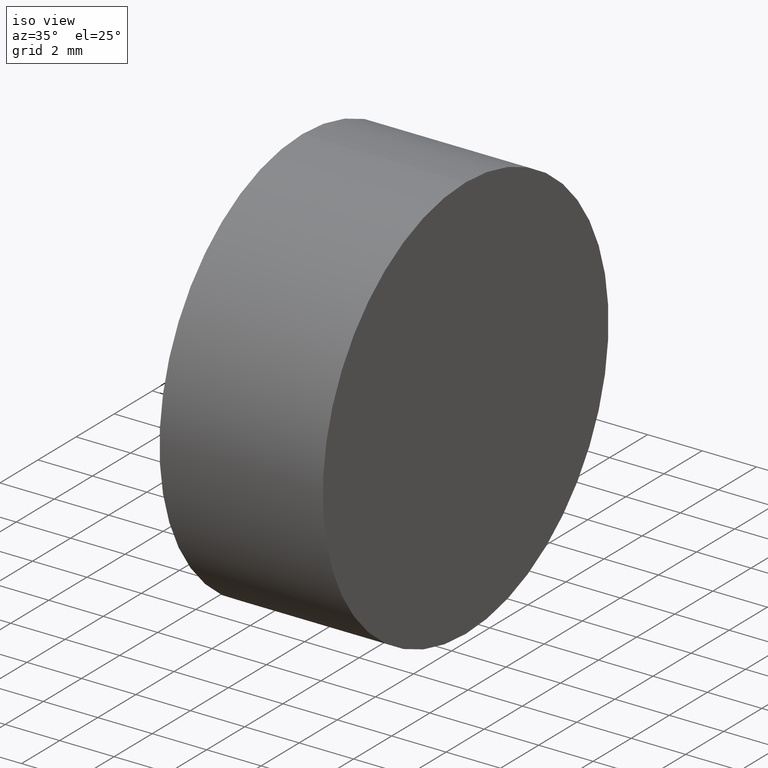
[diagram: clean part render]
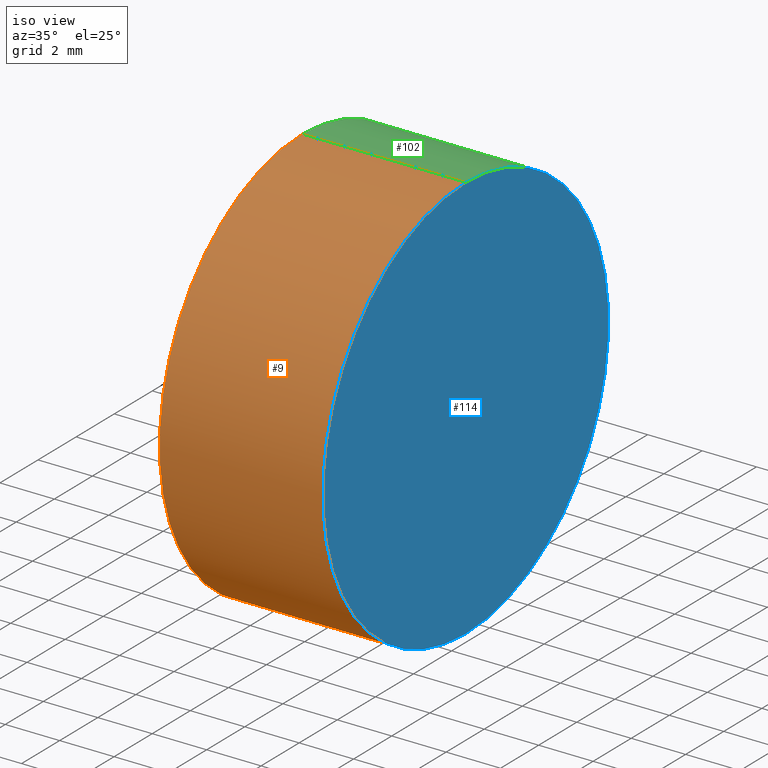
[diagram: same view with three faces highlighted in distinct colors, each labeled with its STEP entity id]
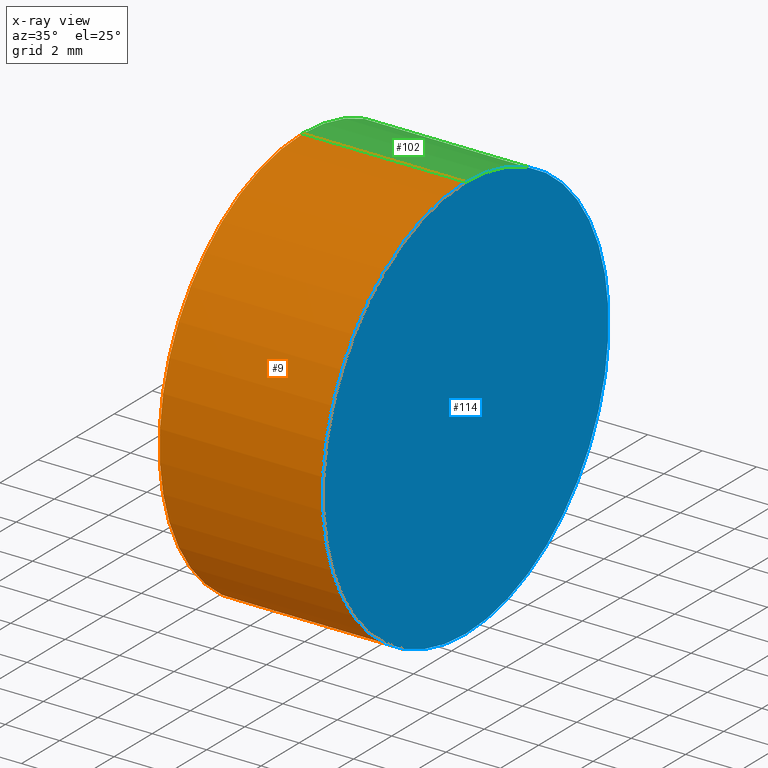
[diagram: x-ray of the same camera — body ghosted, the three highlighted faces saturated]
A machine part, iso view with three faces highlighted in distinct colors.
The next image is the same camera in x-ray (body ghosted, the three faces saturated) — at least one of them is partly hidden behind the body in this view.
Their STEP definitions:

[orange] entity #9 — the highlighted cylindrical surface (partial cylindrical patch) has radius 7.5 mm, axis along (-1, -0, -0).
#1 = AXIS2_PLACEMENT_3D ( 'NONE', #71, #85, #140 ) ;
#4 = EDGE_CURVE ( 'NONE', #12, #138, #10, .T. ) ;
#8 = ORIENTED_EDGE ( 'NONE', *, *, #123, .T. ) ;
#9 = ADVANCED_FACE ( 'NONE', ( #64 ), #42, .T. ) ;
#10 = LINE ( 'NONE', #111, #103 ) ;
#11 = VERTEX_POINT ( 'NONE', #110 ) ;
#12 = VERTEX_POINT ( 'NONE', #99 ) ;
#13 = AXIS2_PLACEMENT_3D ( 'NONE', #91, #41, #51 ) ;
#36 = CARTESIAN_POINT ( 'NONE',  ( 127.0004009963080200, 38.64658967450770900, 7.500000000000000000 ) ) ;
#41 = DIRECTION ( 'NONE',  ( -1.000000000000000000, -0.0000000000000000000, -0.0000000000000000000 ) ) ;
#42 = CYLINDRICAL_SURFACE ( 'NONE', #83, 7.500000000000000000 ) ;
#46 = ORIENTED_EDGE ( 'NONE', *, *, #4, .F. ) ;
#51 = DIRECTION ( 'NONE',  ( 0.0000000000000000000, 0.0000000000000000000, 1.000000000000000000 ) ) ;
#52 = ORIENTED_EDGE ( 'NONE', *, *, #118, .T. ) ;
#59 = DIRECTION ( 'NONE',  ( 0.0000000000000000000, 0.0000000000000000000, 1.000000000000000000 ) ) ;
#61 = EDGE_LOOP ( 'NONE', ( #46, #8, #52, #132 ) ) ;
#62 = EDGE_CURVE ( 'NONE', #138, #11, #131, .T. ) ;
#64 = FACE_OUTER_BOUND ( 'NONE', #61, .T. ) ;
#66 = CARTESIAN_POINT ( 'NONE',  ( 136.0639985298940900, 38.64658967450770900, 7.500000000000000000 ) ) ;
#71 = CARTESIAN_POINT ( 'NONE',  ( 136.0639985298940900, 38.64658967450770900, 0.0000000000000000000 ) ) ;
#72 = VECTOR ( 'NONE', #127, 1000.000000000000000 ) ;
#83 = AXIS2_PLACEMENT_3D ( 'NONE', #129, #121, #59 ) ;
#85 = DIRECTION ( 'NONE',  ( -1.000000000000000000, -0.0000000000000000000, -0.0000000000000000000 ) ) ;
#88 = CIRCLE ( 'NONE', #1, 7.500000000000000000 ) ;
#91 = CARTESIAN_POINT ( 'NONE',  ( 130.0639985298940900, 38.64658967450770900, 0.0000000000000000000 ) ) ;
#95 = CARTESIAN_POINT ( 'NONE',  ( 130.0639985298940900, 38.64658967450770900, -7.500000000000000000 ) ) ;
#98 = DIRECTION ( 'NONE',  ( -1.000000000000000000, -0.0000000000000000000, -0.0000000000000000000 ) ) ;
#99 = CARTESIAN_POINT ( 'NONE',  ( 136.0639985298940900, 38.64658967450770900, -7.500000000000000000 ) ) ;
#103 = VECTOR ( 'NONE', #98, 1000.000000000000000 ) ;
#110 = CARTESIAN_POINT ( 'NONE',  ( 130.0639985298940900, 38.64658967450770900, 7.500000000000000000 ) ) ;
#111 = CARTESIAN_POINT ( 'NONE',  ( 127.0004009963080200, 38.64658967450770900, -7.500000000000000000 ) ) ;
#112 = VERTEX_POINT ( 'NONE', #66 ) ;
#118 = EDGE_CURVE ( 'NONE', #112, #11, #135, .T. ) ;
#121 = DIRECTION ( 'NONE',  ( -1.000000000000000000, -0.0000000000000000000, -0.0000000000000000000 ) ) ;
#123 = EDGE_CURVE ( 'NONE', #12, #112, #88, .T. ) ;
#127 = DIRECTION ( 'NONE',  ( -1.000000000000000000, -0.0000000000000000000, -0.0000000000000000000 ) ) ;
#129 = CARTESIAN_POINT ( 'NONE',  ( 127.0004009963080200, 38.64658967450770900, 0.0000000000000000000 ) ) ;
#131 = CIRCLE ( 'NONE', #13, 7.500000000000000000 ) ;
#132 = ORIENTED_EDGE ( 'NONE', *, *, #62, .F. ) ;
#135 = LINE ( 'NONE', #36, #72 ) ;
#138 = VERTEX_POINT ( 'NONE', #95 ) ;
#140 = DIRECTION ( 'NONE',  ( 0.0000000000000000000, 0.0000000000000000000, 1.000000000000000000 ) ) ;

[blue] entity #114 — the highlighted planar face has unit normal (-1, 0, -0).
#1 = AXIS2_PLACEMENT_3D ( 'NONE', #71, #85, #140 ) ;
#12 = VERTEX_POINT ( 'NONE', #99 ) ;
#19 = EDGE_CURVE ( 'NONE', #112, #12, #101, .T. ) ;
#24 = EDGE_LOOP ( 'NONE', ( #70, #38 ) ) ;
#33 = CARTESIAN_POINT ( 'NONE',  ( 136.0639985298940900, 38.64658967450770900, 0.0000000000000000000 ) ) ;
#38 = ORIENTED_EDGE ( 'NONE', *, *, #123, .F. ) ;
#40 = CARTESIAN_POINT ( 'NONE',  ( 136.0639985298940900, 38.64658967450770900, 0.0000000000000000000 ) ) ;
#55 = PLANE ( 'NONE',  #84 ) ;
#66 = CARTESIAN_POINT ( 'NONE',  ( 136.0639985298940900, 38.64658967450770900, 7.500000000000000000 ) ) ;
#70 = ORIENTED_EDGE ( 'NONE', *, *, #19, .F. ) ;
#71 = CARTESIAN_POINT ( 'NONE',  ( 136.0639985298940900, 38.64658967450770900, 0.0000000000000000000 ) ) ;
#74 = AXIS2_PLACEMENT_3D ( 'NONE', #40, #76, #120 ) ;
#76 = DIRECTION ( 'NONE',  ( -1.000000000000000000, -0.0000000000000000000, -0.0000000000000000000 ) ) ;
#82 = FACE_OUTER_BOUND ( 'NONE', #24, .T. ) ;
#84 = AXIS2_PLACEMENT_3D ( 'NONE', #33, #125, #92 ) ;
#85 = DIRECTION ( 'NONE',  ( -1.000000000000000000, -0.0000000000000000000, -0.0000000000000000000 ) ) ;
#88 = CIRCLE ( 'NONE', #1, 7.500000000000000000 ) ;
#92 = DIRECTION ( 'NONE',  ( -0.0000000000000000000, 0.0000000000000000000, 1.000000000000000000 ) ) ;
#99 = CARTESIAN_POINT ( 'NONE',  ( 136.0639985298940900, 38.64658967450770900, -7.500000000000000000 ) ) ;
#101 = CIRCLE ( 'NONE', #74, 7.500000000000000000 ) ;
#112 = VERTEX_POINT ( 'NONE', #66 ) ;
#114 = ADVANCED_FACE ( 'NONE', ( #82 ), #55, .F. ) ;
#120 = DIRECTION ( 'NONE',  ( 0.0000000000000000000, 0.0000000000000000000, 1.000000000000000000 ) ) ;
#123 = EDGE_CURVE ( 'NONE', #12, #112, #88, .T. ) ;
#125 = DIRECTION ( 'NONE',  ( -1.000000000000000000, 0.0000000000000000000, -0.0000000000000000000 ) ) ;
#140 = DIRECTION ( 'NONE',  ( 0.0000000000000000000, 0.0000000000000000000, 1.000000000000000000 ) ) ;

[green] entity #102 — the highlighted cylindrical surface (partial cylindrical patch) has radius 7.5 mm, axis along (-1, -0, -0).
#4 = EDGE_CURVE ( 'NONE', #12, #138, #10, .T. ) ;
#7 = DIRECTION ( 'NONE',  ( -1.000000000000000000, -0.0000000000000000000, -0.0000000000000000000 ) ) ;
#10 = LINE ( 'NONE', #111, #103 ) ;
#11 = VERTEX_POINT ( 'NONE', #110 ) ;
#12 = VERTEX_POINT ( 'NONE', #99 ) ;
#17 = ORIENTED_EDGE ( 'NONE', *, *, #19, .T. ) ;
#19 = EDGE_CURVE ( 'NONE', #112, #12, #101, .T. ) ;
#27 = EDGE_CURVE ( 'NONE', #11, #138, #68, .T. ) ;
#30 = CARTESIAN_POINT ( 'NONE',  ( 127.0004009963080200, 38.64658967450770900, 0.0000000000000000000 ) ) ;
#36 = CARTESIAN_POINT ( 'NONE',  ( 127.0004009963080200, 38.64658967450770900, 7.500000000000000000 ) ) ;
#39 = AXIS2_PLACEMENT_3D ( 'NONE', #30, #122, #60 ) ;
#40 = CARTESIAN_POINT ( 'NONE',  ( 136.0639985298940900, 38.64658967450770900, 0.0000000000000000000 ) ) ;
#43 = ORIENTED_EDGE ( 'NONE', *, *, #118, .F. ) ;
#60 = DIRECTION ( 'NONE',  ( 0.0000000000000000000, 0.0000000000000000000, 1.000000000000000000 ) ) ;
#66 = CARTESIAN_POINT ( 'NONE',  ( 136.0639985298940900, 38.64658967450770900, 7.500000000000000000 ) ) ;
#68 = CIRCLE ( 'NONE', #136, 7.500000000000000000 ) ;
#72 = VECTOR ( 'NONE', #127, 1000.000000000000000 ) ;
#73 = DIRECTION ( 'NONE',  ( 0.0000000000000000000, 0.0000000000000000000, 1.000000000000000000 ) ) ;
#74 = AXIS2_PLACEMENT_3D ( 'NONE', #40, #76, #120 ) ;
#76 = DIRECTION ( 'NONE',  ( -1.000000000000000000, -0.0000000000000000000, -0.0000000000000000000 ) ) ;
#77 = CYLINDRICAL_SURFACE ( 'NONE', #39, 7.500000000000000000 ) ;
#79 = ORIENTED_EDGE ( 'NONE', *, *, #4, .T. ) ;
#95 = CARTESIAN_POINT ( 'NONE',  ( 130.0639985298940900, 38.64658967450770900, -7.500000000000000000 ) ) ;
#97 = EDGE_LOOP ( 'NONE', ( #17, #79, #137, #43 ) ) ;
#98 = DIRECTION ( 'NONE',  ( -1.000000000000000000, -0.0000000000000000000, -0.0000000000000000000 ) ) ;
#99 = CARTESIAN_POINT ( 'NONE',  ( 136.0639985298940900, 38.64658967450770900, -7.500000000000000000 ) ) ;
#101 = CIRCLE ( 'NONE', #74, 7.500000000000000000 ) ;
#102 = ADVANCED_FACE ( 'NONE', ( #133 ), #77, .T. ) ;
#103 = VECTOR ( 'NONE', #98, 1000.000000000000000 ) ;
#110 = CARTESIAN_POINT ( 'NONE',  ( 130.0639985298940900, 38.64658967450770900, 7.500000000000000000 ) ) ;
#111 = CARTESIAN_POINT ( 'NONE',  ( 127.0004009963080200, 38.64658967450770900, -7.500000000000000000 ) ) ;
#112 = VERTEX_POINT ( 'NONE', #66 ) ;
#118 = EDGE_CURVE ( 'NONE', #112, #11, #135, .T. ) ;
#120 = DIRECTION ( 'NONE',  ( 0.0000000000000000000, 0.0000000000000000000, 1.000000000000000000 ) ) ;
#122 = DIRECTION ( 'NONE',  ( -1.000000000000000000, -0.0000000000000000000, -0.0000000000000000000 ) ) ;
#127 = DIRECTION ( 'NONE',  ( -1.000000000000000000, -0.0000000000000000000, -0.0000000000000000000 ) ) ;
#128 = CARTESIAN_POINT ( 'NONE',  ( 130.0639985298940900, 38.64658967450770900, 0.0000000000000000000 ) ) ;
#133 = FACE_OUTER_BOUND ( 'NONE', #97, .T. ) ;
#135 = LINE ( 'NONE', #36, #72 ) ;
#136 = AXIS2_PLACEMENT_3D ( 'NONE', #128, #7, #73 ) ;
#137 = ORIENTED_EDGE ( 'NONE', *, *, #27, .F. ) ;
#138 = VERTEX_POINT ( 'NONE', #95 ) ;